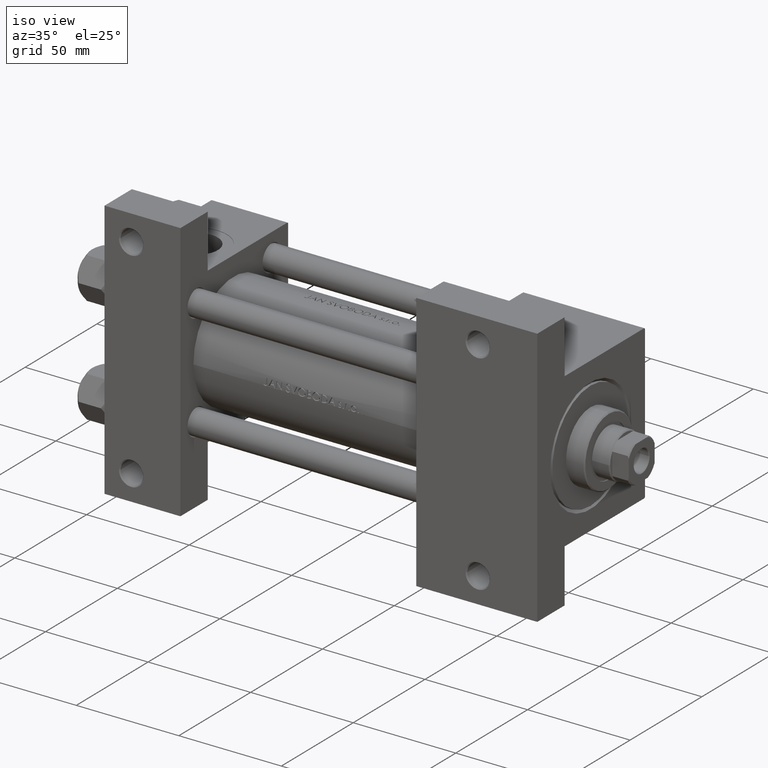
[diagram: clean part render]
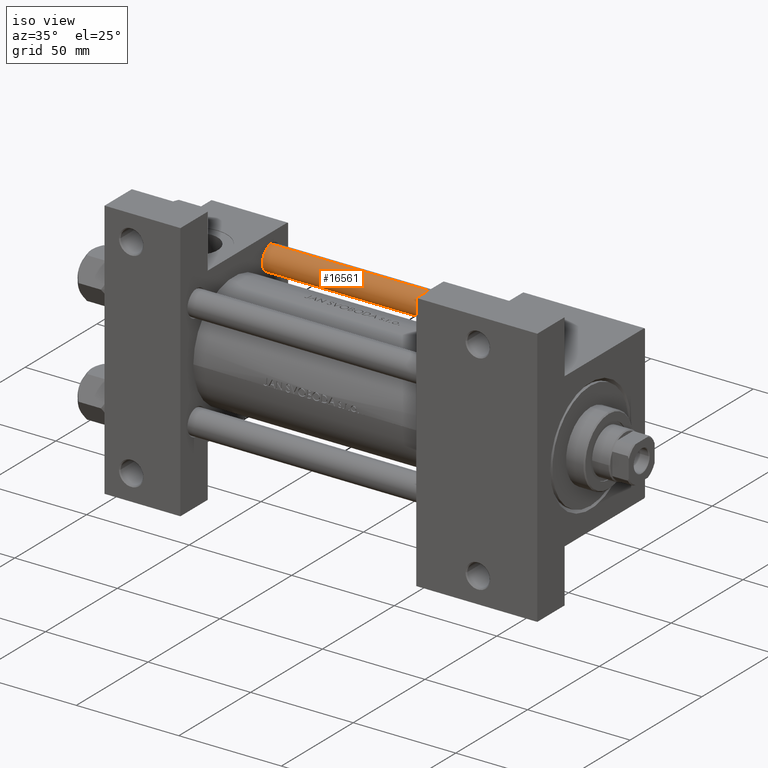
[diagram: same view with one face highlighted and labeled with its STEP entity id]
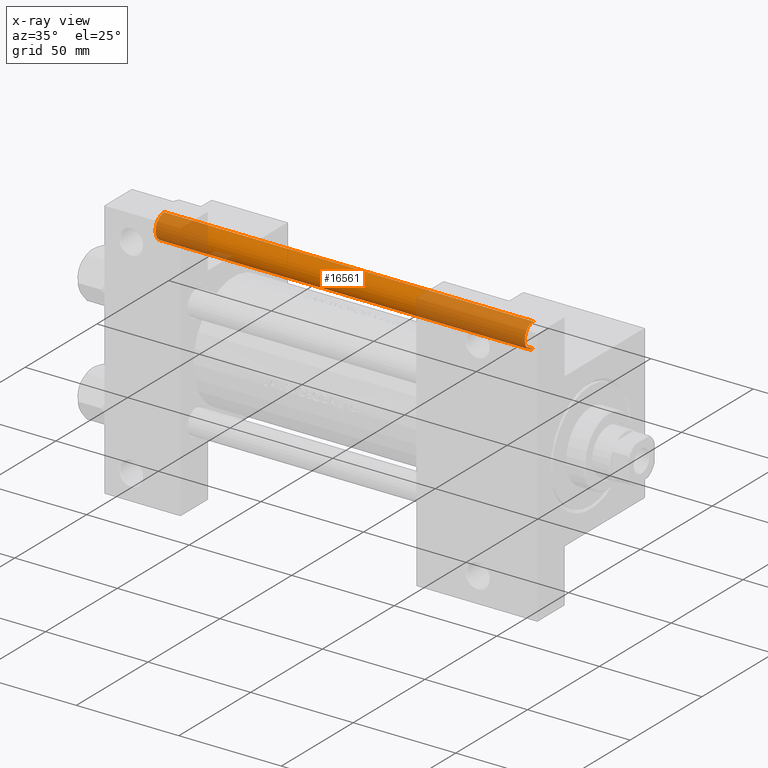
[diagram: x-ray of the same camera — body ghosted, the highlighted face saturated]
A machine part, iso view. The second image highlights one B-rep face of the part: STEP entity #16561.
The next image is the same camera in x-ray: the body ghosted, the highlighted face saturated — about 44% of this face is hidden behind the body in this view.
In plain terms, the highlighted cylindrical surface (edge-blend (fillet) strip) has radius 6 mm, axis along (-1, -0, -0).
Its self-contained STEP definition (entity closure, byte-faithful):
#92 = DIRECTION ( 'NONE',  ( 1.000000000000000000, 0.000000000000000000, 0.000000000000000000 ) ) ;
#165 = DIRECTION ( 'NONE',  ( -0.000000000000000000, -0.000000000000000000, 1.000000000000000000 ) ) ;
#3835 = DIRECTION ( 'NONE',  ( 0.000000000000000000, 0.000000000000000000, -1.000000000000000000 ) ) ;
#6531 = ORIENTED_EDGE ( 'NONE', *, *, #24521, .T. ) ;
#6654 = CARTESIAN_POINT ( 'NONE',  ( 0.000000000000000000, 0.000000000000000000, 0.5000000000000559552 ) ) ;
#8691 = DIRECTION ( 'NONE',  ( -0.000000000000000000, -0.000000000000000000, -1.000000000000000000 ) ) ;
#10189 = CIRCLE ( 'NONE', #35671, 6.000000000000000888 ) ;
#10562 = CARTESIAN_POINT ( 'NONE',  ( -6.000000000000000888, 0.000000000000000000, 180.5000000000000000 ) ) ;
#11074 = AXIS2_PLACEMENT_3D ( 'NONE', #6654, #165, #26581 ) ;
#11339 = CYLINDRICAL_SURFACE ( 'NONE', #42096, 6.000000000000000888 ) ;
#11589 = FACE_OUTER_BOUND ( 'NONE', #47285, .T. ) ;
#11773 = VERTEX_POINT ( 'NONE', #10562 ) ;
#11920 = VERTEX_POINT ( 'NONE', #25772 ) ;
#16561 = ADVANCED_FACE ( 'NONE', ( #11589 ), #11339, .T. ) ;
#17153 = EDGE_CURVE ( 'NONE', #11773, #40146, #32914, .T. ) ;
#17530 = CARTESIAN_POINT ( 'NONE',  ( -6.000000000000000888, 0.000000000000000000, 0.5000000000000559552 ) ) ;
#17979 = CARTESIAN_POINT ( 'NONE',  ( -6.000000000000000888, 0.000000000000000000, 181.0000000000000000 ) ) ;
#19298 = CARTESIAN_POINT ( 'NONE',  ( 0.000000000000000000, 0.000000000000000000, 180.5000000000000000 ) ) ;
#22726 = DIRECTION ( 'NONE',  ( -0.000000000000000000, -0.000000000000000000, -1.000000000000000000 ) ) ;
#23371 = VERTEX_POINT ( 'NONE', #39291 ) ;
#24330 = ORIENTED_EDGE ( 'NONE', *, *, #17153, .T. ) ;
#24521 = EDGE_CURVE ( 'NONE', #11920, #11773, #10189, .T. ) ;
#25772 = CARTESIAN_POINT ( 'NONE',  ( 6.000000000000000888, 7.347880794884120722E-16, 180.5000000000000000 ) ) ;
#26581 = DIRECTION ( 'NONE',  ( 1.000000000000000000, 0.000000000000000000, 0.000000000000000000 ) ) ;
#26708 = EDGE_CURVE ( 'NONE', #40146, #23371, #26999, .T. ) ;
#26999 = CIRCLE ( 'NONE', #11074, 6.000000000000000888 ) ;
#28268 = ORIENTED_EDGE ( 'NONE', *, *, #26708, .T. ) ;
#29719 = EDGE_CURVE ( 'NONE', #11920, #23371, #34847, .T. ) ;
#32914 = LINE ( 'NONE', #17979, #38913 ) ;
#33277 = DIRECTION ( 'NONE',  ( -1.000000000000000000, 0.000000000000000000, 0.000000000000000000 ) ) ;
#33980 = ORIENTED_EDGE ( 'NONE', *, *, #29719, .F. ) ;
#34847 = LINE ( 'NONE', #47277, #35032 ) ;
#35032 = VECTOR ( 'NONE', #8691, 1000.000000000000000 ) ;
#35671 = AXIS2_PLACEMENT_3D ( 'NONE', #19298, #3835, #92 ) ;
#38913 = VECTOR ( 'NONE', #22726, 1000.000000000000000 ) ;
#39291 = CARTESIAN_POINT ( 'NONE',  ( 6.000000000000000888, 7.347880794884120722E-16, 0.5000000000000559552 ) ) ;
#40146 = VERTEX_POINT ( 'NONE', #17530 ) ;
#41724 = CARTESIAN_POINT ( 'NONE',  ( 0.000000000000000000, 0.000000000000000000, 181.0000000000000000 ) ) ;
#42096 = AXIS2_PLACEMENT_3D ( 'NONE', #41724, #44712, #33277 ) ;
#44712 = DIRECTION ( 'NONE',  ( -0.000000000000000000, -0.000000000000000000, -1.000000000000000000 ) ) ;
#47277 = CARTESIAN_POINT ( 'NONE',  ( 6.000000000000000888, 7.347880794884120722E-16, 181.0000000000000000 ) ) ;
#47285 = EDGE_LOOP ( 'NONE', ( #33980, #6531, #24330, #28268 ) ) ;